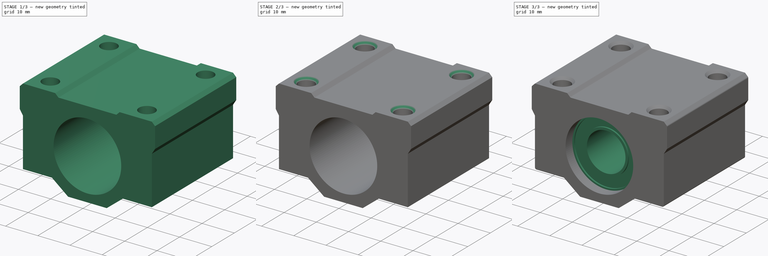
[diagram: build sequence overview — one tinted view per stage of 3, left to right]
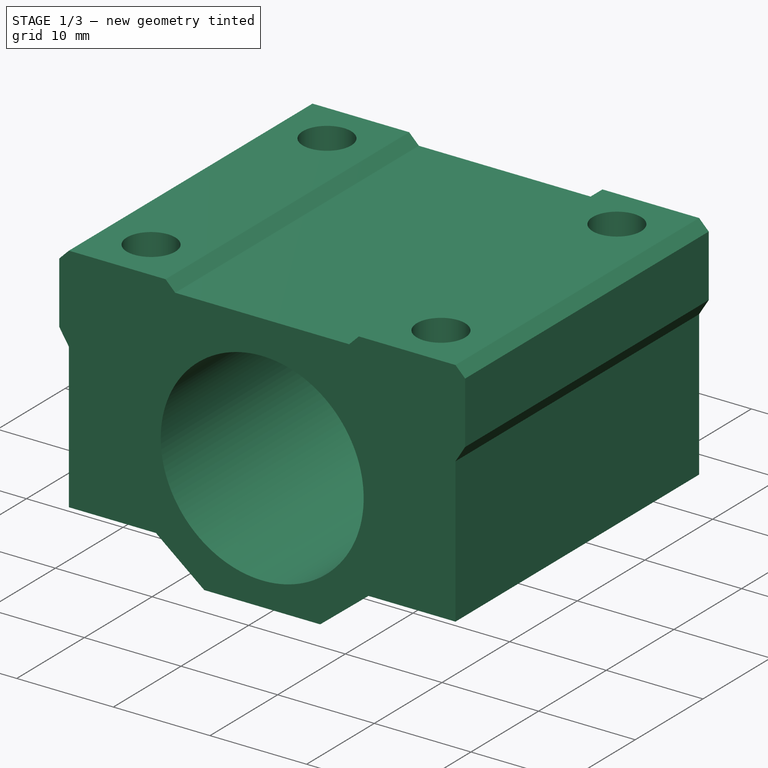
[diagram: stage 1 of 3 — iso view after this stage's code; geometry added in this stage tinted green]
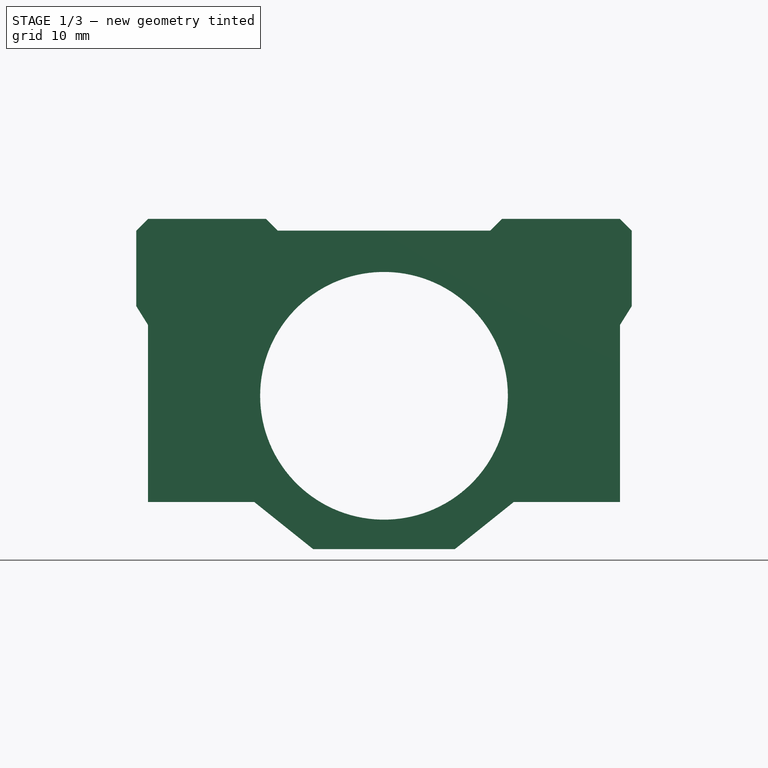
[diagram: stage 1 of 3 — front view after this stage's code; geometry added in this stage tinted green]
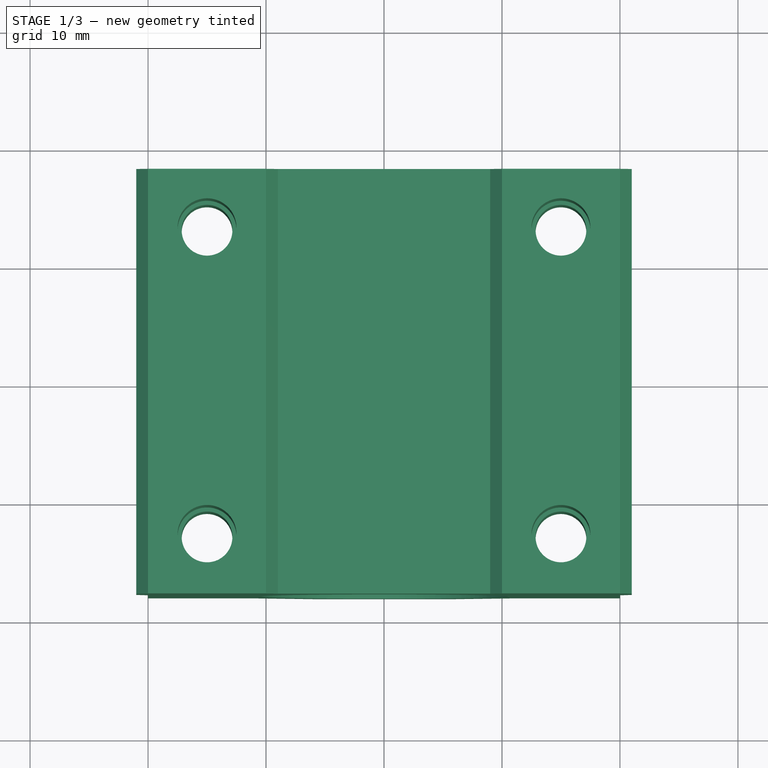
[diagram: stage 1 of 3 — top view after this stage's code; geometry added in this stage tinted green]
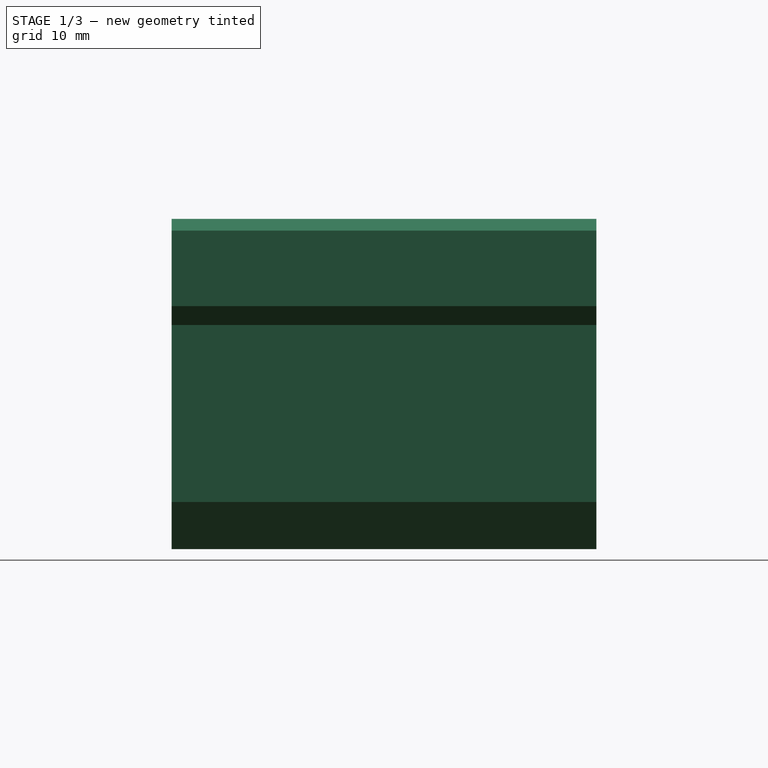
[diagram: stage 1 of 3 — right view after this stage's code; geometry added in this stage tinted green]
FCSTD DOCUMENT  (FreeCAD 0.15R4671 (Git))
Label: sc12uu
License: All rights reserved
LicenseURL: http://en.wikipedia.org/wiki/All_rights_reserved
objects: Sketcher::SketchObject×4, PartDesign::Pocket×2, PartDesign::Chamfer×2, PartDesign::Pad×1, PartDesign::Revolution×1, PartDesign::Fillet×1, Part::Fuse×1
note: 16 computed .brp shape members not serialized (recipe doc carries the construction recipe); baked Part::Feature solids carry a one-line shape summary decoded from their .brp

FEATURE [Sketcher::SketchObject] Sketch  label="casign-sketch"
  Placement = pos=(0,0,0) rot=(1,0,0;1.5708rad)
  sketch-geometry (20):
    g0: LineSegment StartX=-20 StartY=-9 StartZ=0 EndX=-20 EndY=6 EndZ=0
    g1: LineSegment StartX=-20 StartY=6 StartZ=0 EndX=-21 EndY=7.6 EndZ=0
    g2: LineSegment StartX=-21 StartY=7.6 StartZ=0 EndX=-21 EndY=14 EndZ=0
    g3: LineSegment StartX=-21 StartY=14 StartZ=0 EndX=-20 EndY=15 EndZ=0
    g4: LineSegment StartX=20 StartY=15 StartZ=0 EndX=21 EndY=14 EndZ=0
    g5: LineSegment StartX=21 StartY=14 StartZ=0 EndX=21 EndY=7.6 EndZ=0
    g6: LineSegment StartX=21 StartY=7.6 StartZ=0 EndX=20 EndY=6 EndZ=0
    g7: LineSegment StartX=20 StartY=6 StartZ=0 EndX=20 EndY=-9 EndZ=0
    g8: LineSegment StartX=20 StartY=-9 StartZ=0 EndX=11 EndY=-9 EndZ=0
    g9: LineSegment StartX=11 StartY=-9 StartZ=0 EndX=6 EndY=-13 EndZ=0
    g10: LineSegment StartX=6 StartY=-13 StartZ=0 EndX=-6 EndY=-13 EndZ=0
    g11: LineSegment StartX=-6 StartY=-13 StartZ=0 EndX=-11 EndY=-9 EndZ=0
    g12: LineSegment StartX=-11 StartY=-9 StartZ=0 EndX=-20 EndY=-9 EndZ=0
    g13: LineSegment StartX=-20 StartY=15 StartZ=0 EndX=-10 EndY=15 EndZ=0
    g14: LineSegment StartX=-10 StartY=15 StartZ=0 EndX=-9 EndY=14 EndZ=0
    g15: LineSegment StartX=-9 StartY=14 StartZ=0 EndX=9 EndY=14 EndZ=0
    g16: LineSegment StartX=9 StartY=14 StartZ=0 EndX=10 EndY=15 EndZ=0
    g17: Circle CenterX=0 CenterY=0 CenterZ=0 NormalX=0 NormalY=0 NormalZ=1 Radius=10.5
    g18: LineSegment StartX=20 StartY=15 StartZ=0 EndX=10 EndY=15 EndZ=0
    g19: LineSegment [constr] StartX=21 StartY=14 StartZ=0 EndX=-21 EndY=14 EndZ=0
  constraints (57):
    c: Vertical(g0)
    c: Coincident(g0,g1)
    c: Coincident(g1,g2)
    c: Vertical(g2)
    c: Coincident(g2,g3)
    c: Coincident(g4,g5)
    c: Vertical(g5)
    c: Coincident(g5,g6)
    c: Coincident(g6,g7)
    c: Vertical(g7)
    c: Coincident(g7,g8)
    c: Horizontal(g8)
    c: Coincident(g8,g9)
    c: Coincident(g9,g10)
    c: Horizontal(g10)
    c: Coincident(g10,g11)
    c: Coincident(g11,g12)
    c: Coincident(g12,g0)
    c: Horizontal(g12)
    c: Coincident(g3,g13)
    c: Horizontal(g13)
    c: Coincident(g13,g14)
    c: Coincident(g14,g15)
    c: Horizontal(g15)
    c: Coincident(g15,g16)
    c: PointOnObject(g16,g13)
    c: Coincident(g17,g-1)
    c: Radius(g17) = 10.5
    c: DistanceX(g4,g2) = -42
    c: Equal(g7,g0)
    c: Equal(g6,g1)
    c: Symmetric(g7,g0,g-2)
    c: Symmetric(g9,g10,g-2)
    c: Equal(g12,g8)
    c: Symmetric(g5,g1,g-2)
    c: DistanceY(g4,g9) = -28
    c: Coincident(g18,g4)
    c: Coincident(g18,g16)
    c: Horizontal(g18)
    c: DistanceY(g4,g7) = -24
    c: Coincident(g19,g4)
    c: Coincident(g19,g2)
    c: Horizontal(g19)
    c: PointOnObject(g15,g19)
    c: DistanceY(g3,g2) = -1
    c: Equal(g16,g4)
    c: Equal(g4,g3)
    c: Equal(g3,g14)
    c: DistanceX(g2,g3) = 1
    c: Equal(g18,g13)
    c: Distance(g13) = 10
    c: DistanceY(g-1,g3) = 15
    c: DistanceY(g1,g3) = 7.4
    c: DistanceY(g6,g4) = 9
    c: DistanceX(g0,g7) = 40
    c: DistanceX(g11,g8) = 22
    c: DistanceX(g10,g9) = 12
FEATURE [PartDesign::Pad] Pad  label="casing"
  Length = 36
  Length2 = 100
  Midplane = true
  Placement = pos=(0,0,0) rot=(1,0,0;1.5708rad)
  Sketch = -> Sketch
  Type = 0
FEATURE [Sketcher::SketchObject] Sketch002  label="top-holes-sketch"
  ExternalGeometry = -> [Pad]
  Placement = pos=(0,0,15) rot=(0,0,1;3.14159rad)
  Support = -> Pad [Face14]
  sketch-geometry (8):
    g0: LineSegment [constr] StartX=-15 StartY=13 StartZ=0 EndX=15 EndY=13 EndZ=0
    g1: LineSegment [constr] StartX=15 StartY=13 StartZ=0 EndX=15 EndY=-13 EndZ=0
    g2: LineSegment [constr] StartX=15 StartY=-13 StartZ=0 EndX=-15 EndY=-13 EndZ=0
    g3: LineSegment [constr] StartX=-15 StartY=-13 StartZ=0 EndX=-15 EndY=13 EndZ=0
    g4: Circle CenterX=-15 CenterY=13 CenterZ=0 NormalX=0 NormalY=0 NormalZ=1 Radius=2.5
    g5: Circle CenterX=15 CenterY=13 CenterZ=0 NormalX=0 NormalY=0 NormalZ=1 Radius=2.5
    g6: Circle CenterX=-15 CenterY=-13 CenterZ=0 NormalX=0 NormalY=0 NormalZ=1 Radius=2.5
    g7: Circle CenterX=15 CenterY=-13 CenterZ=0 NormalX=0 NormalY=0 NormalZ=1 Radius=2.5
  constraints (20):
    c: Coincident(g0,g1)
    c: Coincident(g1,g2)
    c: Coincident(g2,g3)
    c: Coincident(g3,g0)
    c: Horizontal(g0)
    c: Horizontal(g2)
    c: Vertical(g1)
    c: Vertical(g3)
    c: Symmetric(g2,g1,g-2)
    c: Symmetric(g0,g2,g-1)
    c: DistanceX(g0,g-3) = -6
    c: Coincident(g4,g0)
    c: Coincident(g5,g0)
    c: Coincident(g6,g2)
    c: Coincident(g7,g1)
    c: Radius(g7) = 2.5
    c: Equal(g7,g5)
    c: Equal(g7,g4)
    c: Equal(g7,g6)
    c: DistanceY(g0,g-3) = 5
FEATURE [PartDesign::Pocket] Pocket  label="top-holes"
  Length = 12
  Placement = pos=(0,0,0) rot=(1,0,0;1.5708rad)
  Sketch = -> Sketch002
  Type = 0
FEATURE [Sketcher::SketchObject] Sketch003  label="bottom-holes-sketch"
  ExternalGeometry = -> [Pocket]
  Placement = pos=(0,0,-9) rot=(1,0,0;3.14159rad)
  Support = -> Pocket [Face15]
  sketch-geometry (8):
    g0: LineSegment [constr] StartX=-15 StartY=13 StartZ=0 EndX=15 EndY=13 EndZ=0
    g1: LineSegment [constr] StartX=15 StartY=13 StartZ=0 EndX=15 EndY=-13 EndZ=0
    g2: LineSegment [constr] StartX=15 StartY=-13 StartZ=0 EndX=-15 EndY=-13 EndZ=0
    g3: LineSegment [constr] StartX=-15 StartY=-13 StartZ=0 EndX=-15 EndY=13 EndZ=0
    g4: Circle CenterX=-15 CenterY=13 CenterZ=0 NormalX=0 NormalY=0 NormalZ=1 Radius=2.15
    g5: Circle CenterX=15 CenterY=13 CenterZ=0 NormalX=0 NormalY=0 NormalZ=1 Radius=2.15
    g6: Circle CenterX=15 CenterY=-13 CenterZ=0 NormalX=0 NormalY=0 NormalZ=1 Radius=2.15
    g7: Circle CenterX=-15 CenterY=-13 CenterZ=0 NormalX=0 NormalY=0 NormalZ=1 Radius=2.15
  constraints (20):
    c: Coincident(g0,g1)
    c: Coincident(g1,g2)
    c: Coincident(g2,g3)
    c: Coincident(g3,g0)
    c: Horizontal(g0)
    c: Horizontal(g2)
    c: Vertical(g1)
    c: Vertical(g3)
    c: Symmetric(g0,g0,g-2)
    c: Symmetric(g0,g2,g-1)
    c: DistanceY(g-3,g0) = -5
    c: DistanceX(g-3,g0) = 6
    c: Coincident(g4,g0)
    c: Coincident(g5,g0)
    c: Coincident(g6,g1)
    c: Coincident(g7,g2)
    c: Radius(g4) = 2.15
    c: Equal(g4,g5)
    c: Equal(g4,g6)
    c: Equal(g4,g7)
FEATURE [PartDesign::Pocket] Pocket001  label="bottom-holes"
  Length = 5
  Placement = pos=(0,0,0) rot=(1,0,0;1.5708rad)
  Sketch = -> Sketch003
  Type = 1
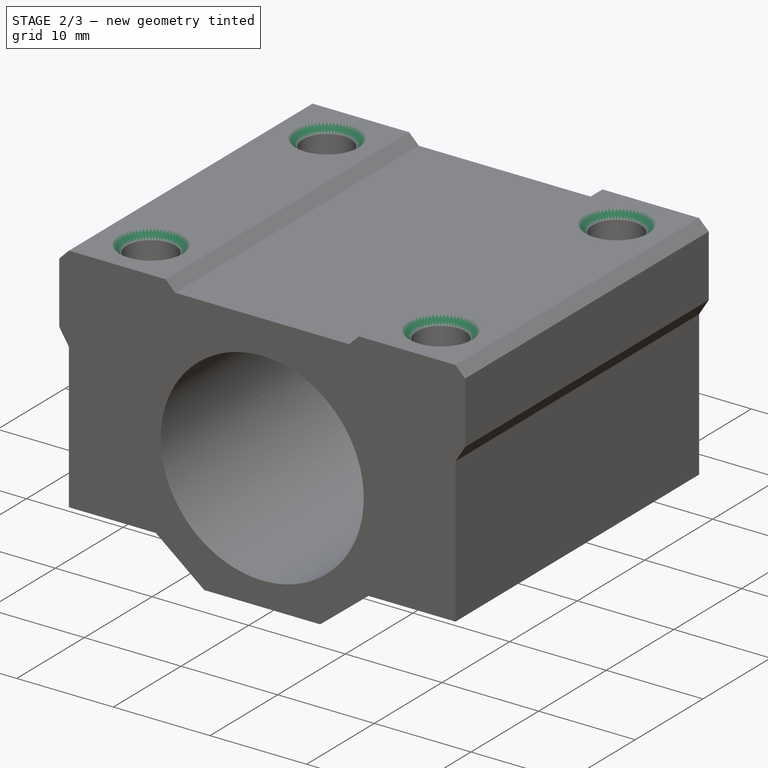
[diagram: stage 2 of 3 — iso view after this stage's code; geometry added in this stage tinted green]
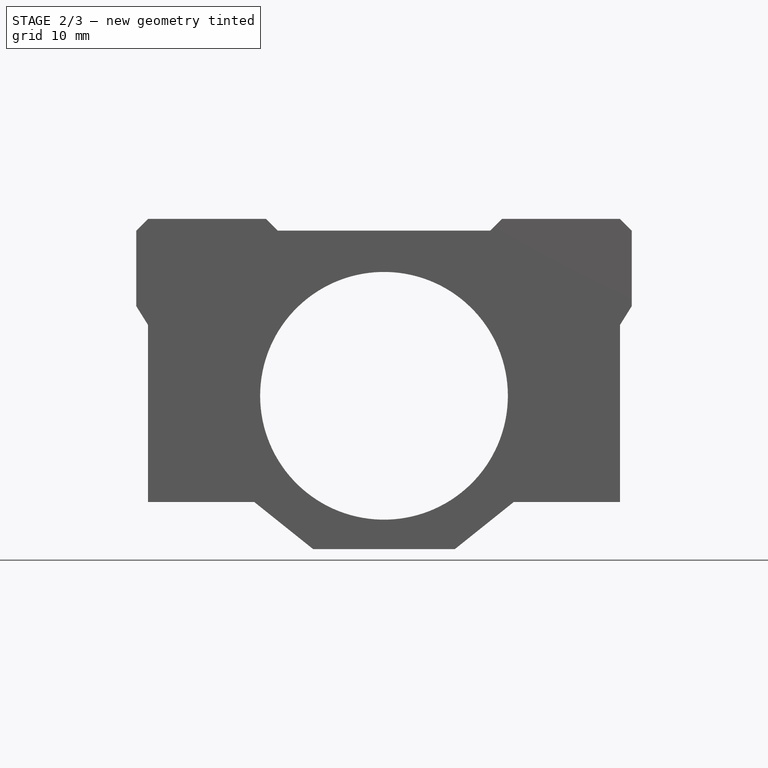
[diagram: stage 2 of 3 — front view after this stage's code; geometry added in this stage tinted green]
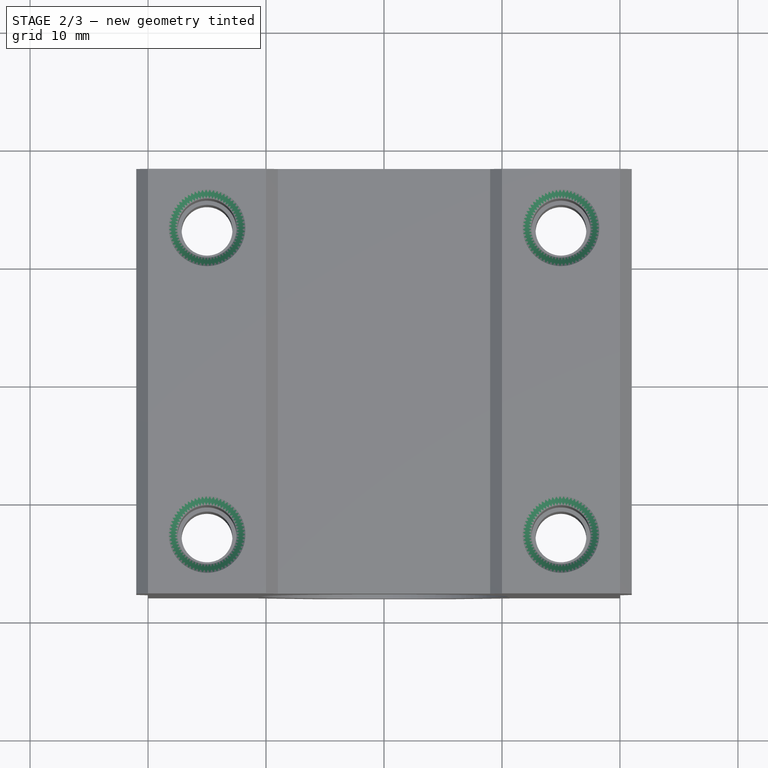
[diagram: stage 2 of 3 — top view after this stage's code; geometry added in this stage tinted green]
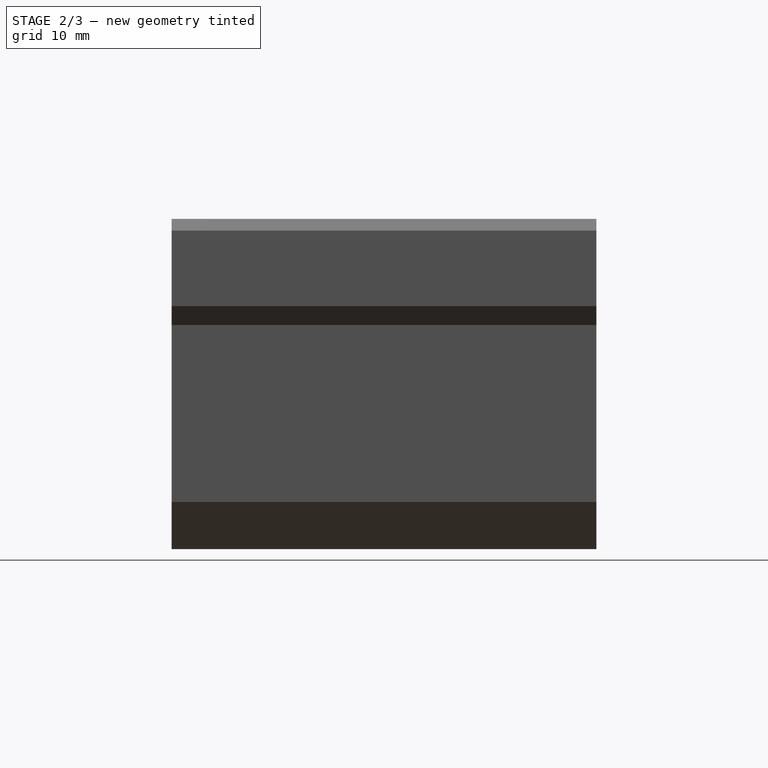
[diagram: stage 2 of 3 — right view after this stage's code; geometry added in this stage tinted green]
FEATURE [PartDesign::Chamfer] Chamfer  label="top-holes-chamfer"
  Base = -> Pocket001 [Edge67,Edge66,Edge9,Edge8]
  Placement = pos=(0,0,0) rot=(1,0,0;1.5708rad)
  Size = 0.75
FEATURE [PartDesign::Chamfer] Chamfer001  label="bottom-holes-chamfer"
  Base = -> Chamfer [Edge56,Edge62,Edge61,Edge55]
  Placement = pos=(0,0,0) rot=(1,0,0;1.5708rad)
  Size = 0.75
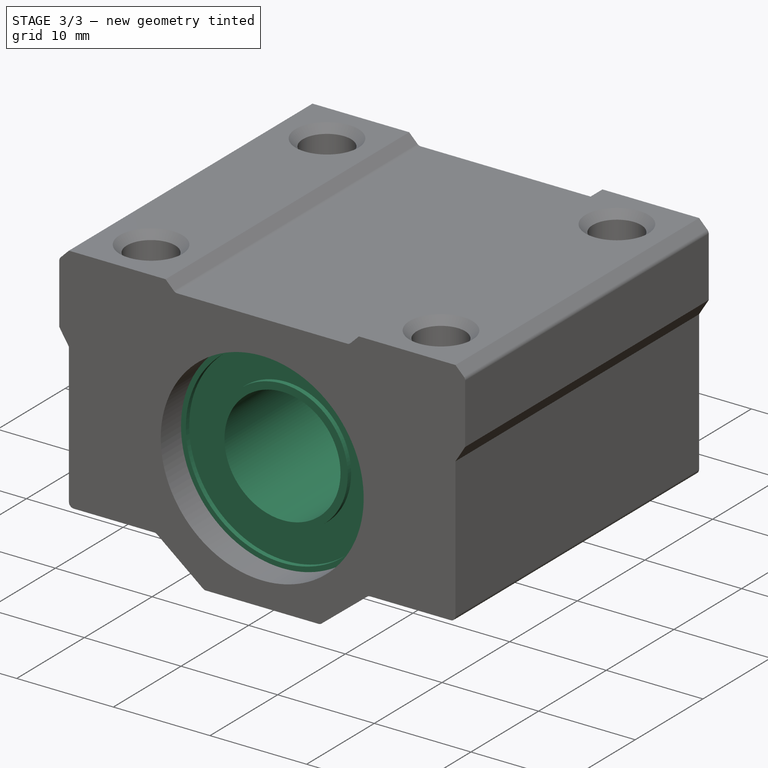
[diagram: stage 3 of 3 — iso view after this stage's code; geometry added in this stage tinted green]
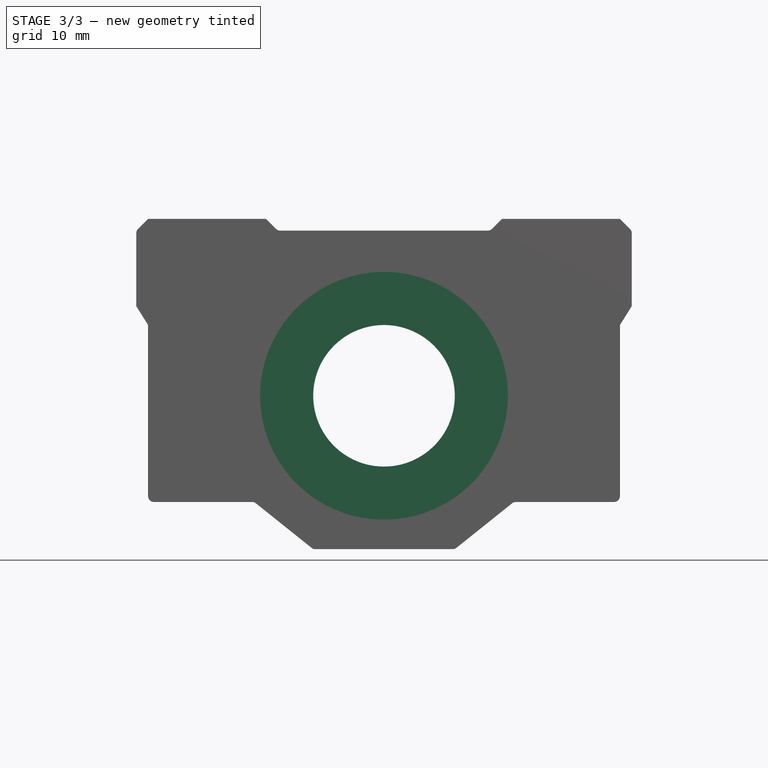
[diagram: stage 3 of 3 — front view after this stage's code; geometry added in this stage tinted green]
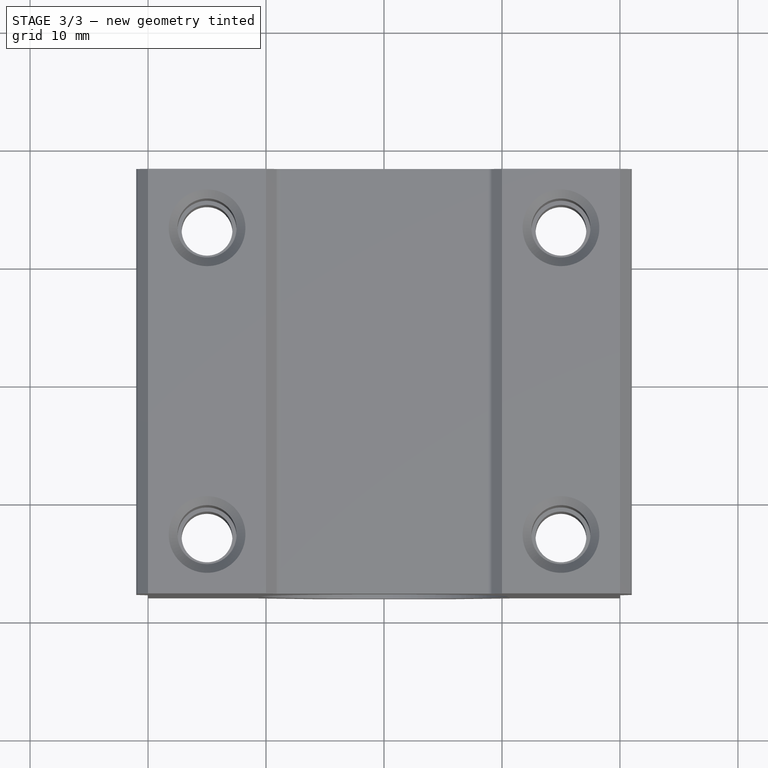
[diagram: stage 3 of 3 — top view after this stage's code; geometry added in this stage tinted green]
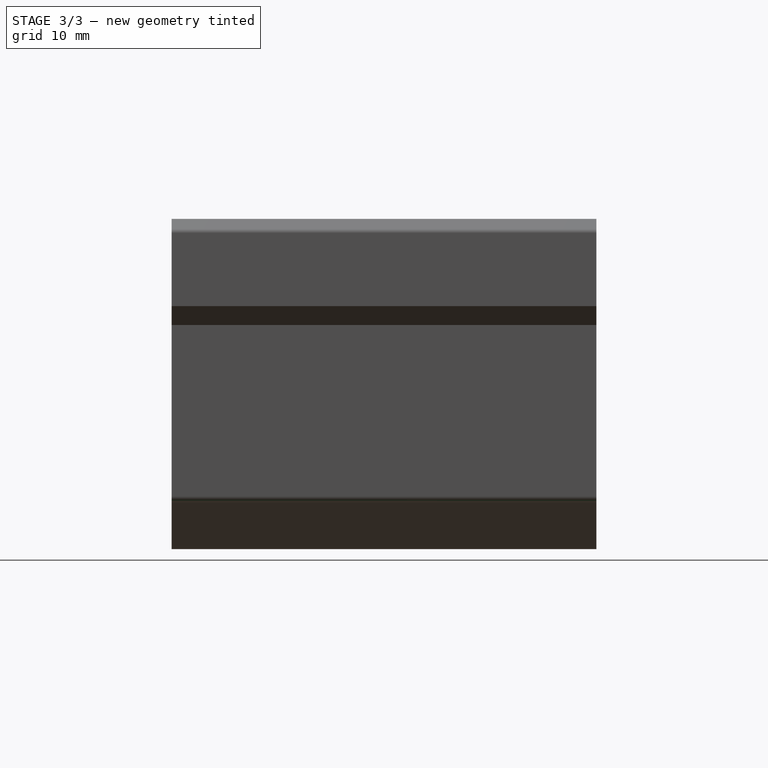
[diagram: stage 3 of 3 — right view after this stage's code; geometry added in this stage tinted green]
FEATURE [Sketcher::SketchObject] Sketch001  label="bearing-sketch"
  Placement = pos=(0,0,0) rot=(0.57735,0.57735,0.57735;2.0944rad)
  sketch-geometry (12):
    g0: LineSegment StartX=-15 StartY=11 StartZ=0 EndX=15 EndY=11 EndZ=0
    g1: LineSegment StartX=14.5 StartY=6.75 StartZ=0 EndX=15 EndY=6.75 EndZ=0
    g2: LineSegment StartX=15 StartY=6.75 StartZ=0 EndX=15 EndY=6 EndZ=0
    g3: LineSegment StartX=15 StartY=6 StartZ=0 EndX=-15 EndY=6 EndZ=0
    g4: LineSegment StartX=-15 StartY=6 StartZ=0 EndX=-15 EndY=6.75 EndZ=0
    g5: LineSegment StartX=-15 StartY=6.75 StartZ=0 EndX=-14.5 EndY=6.75 EndZ=0
    g6: LineSegment StartX=-15 StartY=11 StartZ=0 EndX=-15 EndY=10 EndZ=0
    g7: LineSegment StartX=-15 StartY=10 StartZ=0 EndX=-14.5 EndY=10 EndZ=0
    g8: LineSegment StartX=-14.5 StartY=10 StartZ=0 EndX=-14.5 EndY=6.75 EndZ=0
    g9: LineSegment StartX=15 StartY=11 StartZ=0 EndX=15 EndY=10 EndZ=0
    g10: LineSegment StartX=15 StartY=10 StartZ=0 EndX=14.5 EndY=10 EndZ=0
    g11: LineSegment StartX=14.5 StartY=10 StartZ=0 EndX=14.5 EndY=6.75 EndZ=0
  constraints (36):
    c: Horizontal(g0)
    c: Coincident(g1,g2)
    c: Vertical(g2)
    c: Coincident(g2,g3)
    c: Horizontal(g3)
    c: Coincident(g3,g4)
    c: Vertical(g4)
    c: Coincident(g4,g5)
    c: DistanceY(g-1,g3) = 6
    c: Equal(g4,g2)
    c: DistanceY(g4) = 0.75
    c: Horizontal(g5)
    c: Horizontal(g1)
    c: Equal(g5,g1)
    c: DistanceY(g-1,g0) = 11
    c: Symmetric(g0,g0,g-2)
    c: Coincident(g0,g6)
    c: Vertical(g6)
    c: Coincident(g6,g7)
    c: Coincident(g7,g8)
    c: Coincident(g8,g5)
    c: Vertical(g8)
    c: PointOnObject(g4,g6)
    c: Horizontal(g7)
    c: DistanceY(g-1,g6) = 10
    c: DistanceX(g6,g7) = 0.5
    c: Coincident(g0,g9)
    c: Vertical(g9)
    c: Coincident(g9,g10)
    c: Coincident(g10,g11)
    c: Coincident(g11,g1)
    c: Vertical(g11)
    c: PointOnObject(g1,g9)
    c: Horizontal(g10)
    c: PointOnObject(g10,g7)
    c: DistanceX(g0,g0) = -30
FEATURE [PartDesign::Revolution] Revolution  label="bearing"
  Angle = 360
  Axis = (0,1,0)
  Base = (0,0,0)
  Placement = pos=(0,0,0) rot=(0.57735,0.57735,0.57735;2.0944rad)
  ReferenceAxis = -> Sketch001 [H_Axis]
  Sketch = -> Sketch001
FEATURE [PartDesign::Fillet] Fillet  label="casing-fillet"
  Base = -> Chamfer001 [Edge66,Edge67,Edge53,Edge2,Edge46,Edge5,Edge54,Edge55,Edge57,Edge61]
  Placement = pos=(0,0,0) rot=(1,0,0;1.5708rad)
  Radius = 0.5
FEATURE [Part::Fuse] Fusion  label="sc12uu"
  Base = -> Revolution
  Tool = -> Fillet
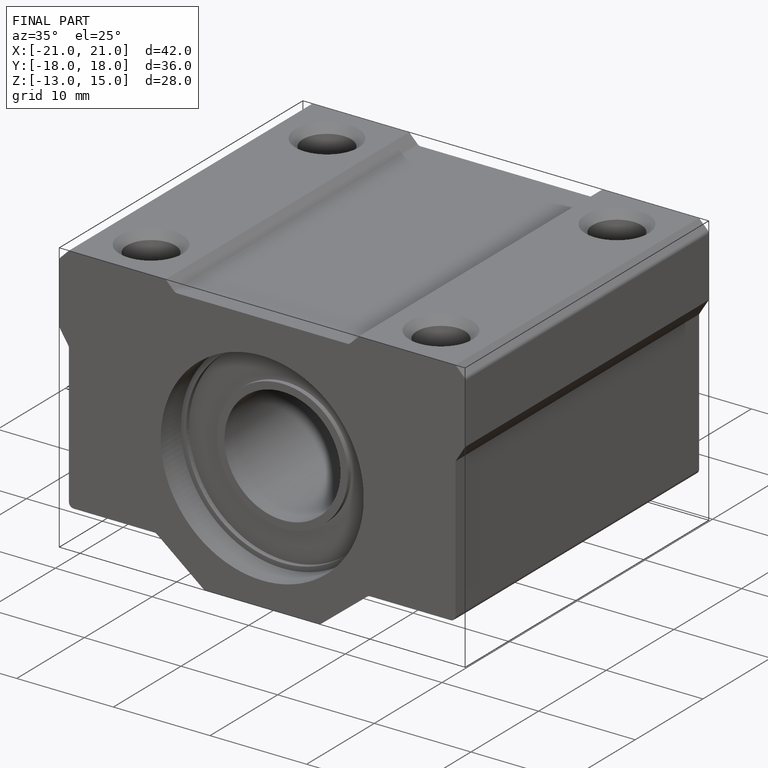
[diagram: finished part — iso view with bounding-box wireframe]
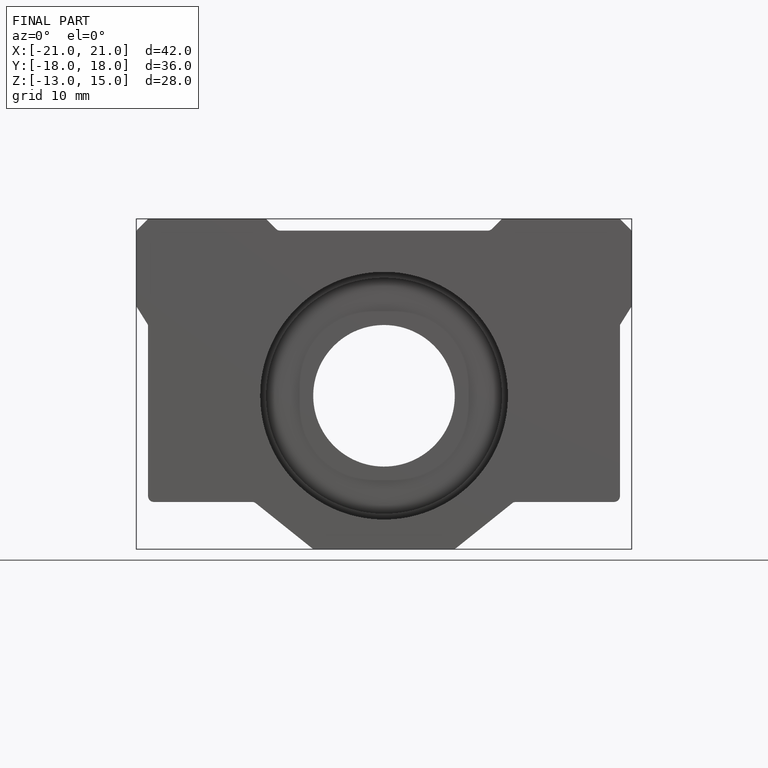
[diagram: finished part — front view with bounding-box wireframe]
